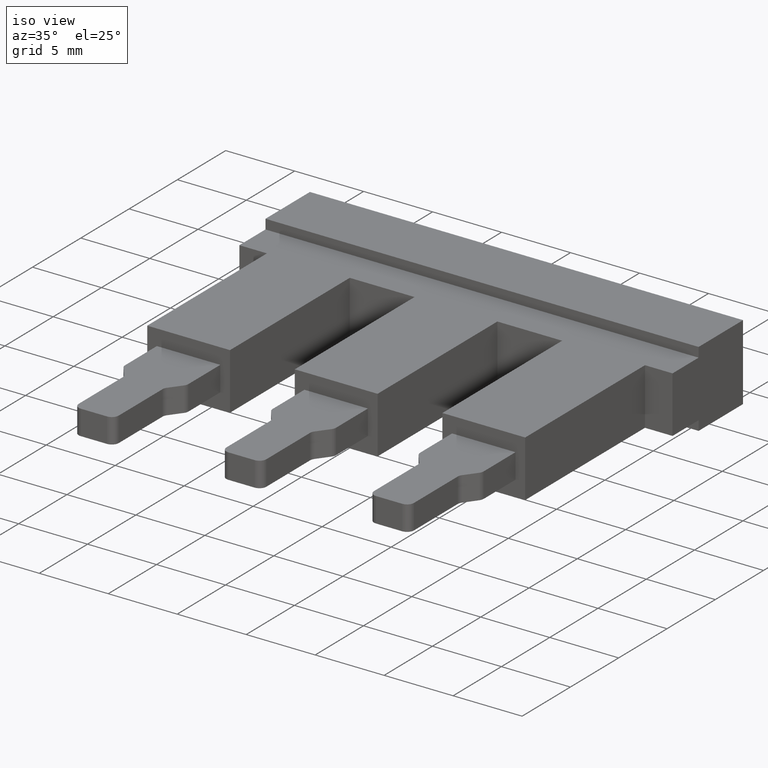
[diagram: clean part render]
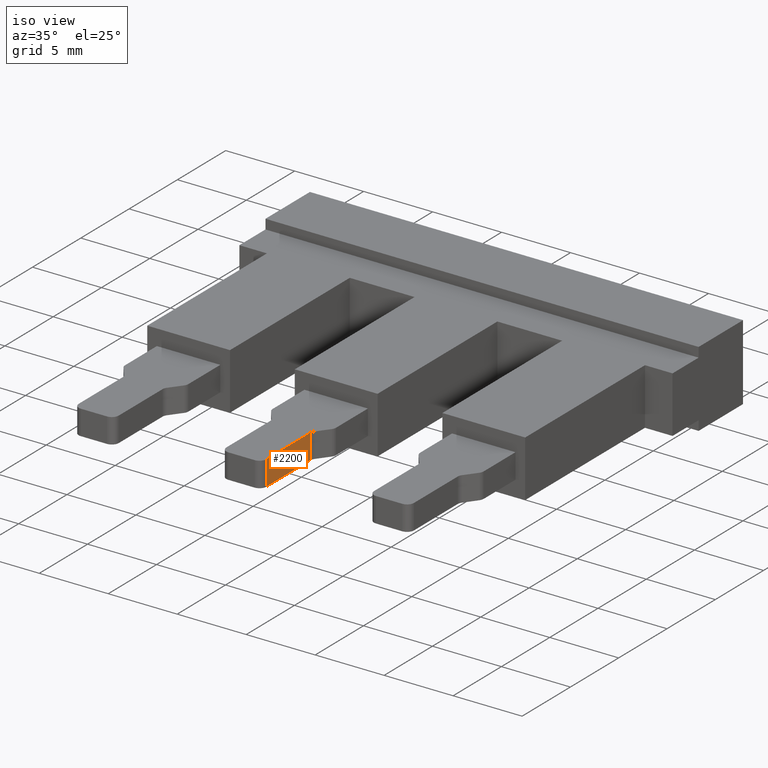
[diagram: same view with one face highlighted and labeled with its STEP entity id]
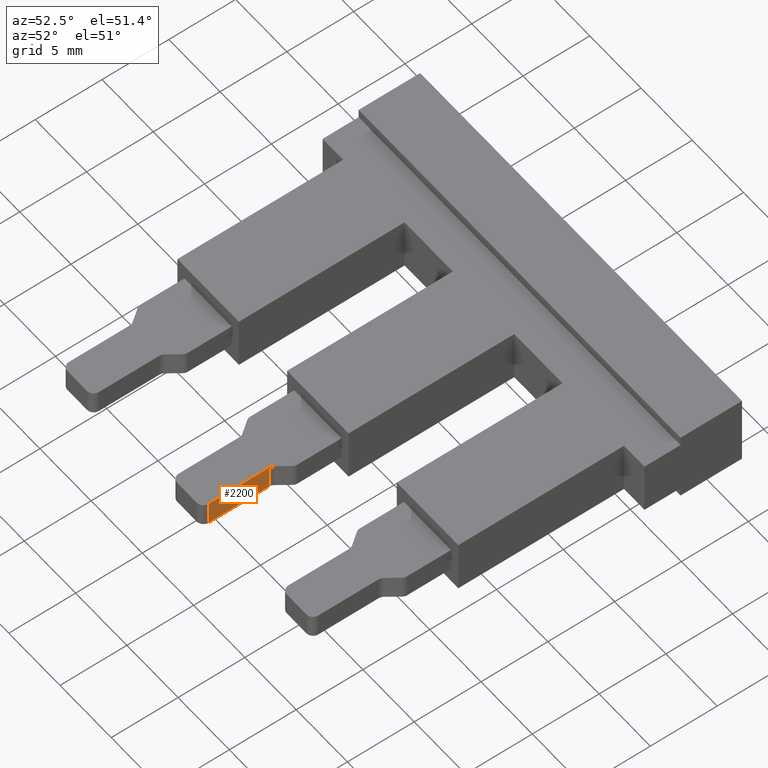
[diagram: same view with one face highlighted and labeled with its STEP entity id]
A machine part, iso view. The second image highlights one B-rep face of the part: STEP entity #2200.
A second angle (auxiliary view) of the same face is appended — the face is thin or edge-on in the first view.
In plain terms, the highlighted planar face has unit normal (-1, -0, 0).
Its self-contained STEP definition (entity closure, byte-faithful):
#155 = EDGE_LOOP ( 'NONE', ( #566, #586, #522, #613 ) ) ;
#241 = VERTEX_POINT ( 'NONE', #716 ) ;
#274 = VERTEX_POINT ( 'NONE', #762 ) ;
#283 = VERTEX_POINT ( 'NONE', #755 ) ;
#300 = VERTEX_POINT ( 'NONE', #805 ) ;
#522 = ORIENTED_EDGE ( 'NONE', *, *, #2123, .F. ) ;
#566 = ORIENTED_EDGE ( 'NONE', *, *, #2111, .F. ) ;
#586 = ORIENTED_EDGE ( 'NONE', *, *, #2104, .T. ) ;
#613 = ORIENTED_EDGE ( 'NONE', *, *, #2096, .T. ) ;
#716 = CARTESIAN_POINT ( 'NONE',  ( 17.14999999999966500, -17.16666666666701600, 2.949999999999999300 ) ) ;
#755 = CARTESIAN_POINT ( 'NONE',  ( 17.14999999999983200, -21.69999999999998900, 2.949999999999999300 ) ) ;
#762 = CARTESIAN_POINT ( 'NONE',  ( 17.14999999999999900, -21.69999999999998900, 1.149999999999979700 ) ) ;
#805 = CARTESIAN_POINT ( 'NONE',  ( 17.14999999999983200, -17.16666666666701600, 1.149999999999979700 ) ) ;
#1082 = VECTOR ( 'NONE', #1517, 1000.000000000000000 ) ;
#1091 = VECTOR ( 'NONE', #1500, 1000.000000000000000 ) ;
#1103 = VECTOR ( 'NONE', #1468, 1000.000000000000000 ) ;
#1110 = VECTOR ( 'NONE', #1521, 1000.000000000000000 ) ;
#1196 = AXIS2_PLACEMENT_3D ( 'NONE', #1887, #1870, #1871 ) ;
#1464 = LINE ( 'NONE', #1467, #1103 ) ;
#1467 = CARTESIAN_POINT ( 'NONE',  ( 17.14999999999999900, -2.699999999999992200, 1.149999999999979700 ) ) ;
#1468 = DIRECTION ( 'NONE',  ( 0.0000000000000000000, 1.000000000000000000, -0.0000000000000000000 ) ) ;
#1480 = CARTESIAN_POINT ( 'NONE',  ( 17.14999999999966500, -2.699999999999992200, 2.949999999999999300 ) ) ;
#1497 = LINE ( 'NONE', #1499, #1091 ) ;
#1499 = CARTESIAN_POINT ( 'NONE',  ( 17.14999999999966500, -17.16666666666703700, 1.449999999999982000 ) ) ;
#1500 = DIRECTION ( 'NONE',  ( 0.0000000000000000000, -0.0000000000000000000, -1.000000000000000000 ) ) ;
#1509 = LINE ( 'NONE', #1480, #1082 ) ;
#1517 = DIRECTION ( 'NONE',  ( -0.0000000000000000000, -1.000000000000000000, -0.0000000000000000000 ) ) ;
#1521 = DIRECTION ( 'NONE',  ( -0.0000000000000000000, 0.0000000000000000000, 1.000000000000000000 ) ) ;
#1541 = LINE ( 'NONE', #1549, #1110 ) ;
#1549 = CARTESIAN_POINT ( 'NONE',  ( 17.14999999999999900, -21.69999999999998900, 1.449999999999982000 ) ) ;
#1869 = PLANE ( 'NONE',  #1196 ) ;
#1870 = DIRECTION ( 'NONE',  ( -1.000000000000000000, -7.347064133549189600E-014, 0.0000000000000000000 ) ) ;
#1871 = DIRECTION ( 'NONE',  ( 7.347064133549189600E-014, -1.000000000000000000, 0.0000000000000000000 ) ) ;
#1887 = CARTESIAN_POINT ( 'NONE',  ( 17.14999999999999900, -21.69999999999998900, 1.449999999999982000 ) ) ;
#1898 = FACE_OUTER_BOUND ( 'NONE', #155, .T. ) ;
#2096 = EDGE_CURVE ( 'NONE', #274, #300, #1464, .T. ) ;
#2104 = EDGE_CURVE ( 'NONE', #241, #283, #1509, .T. ) ;
#2111 = EDGE_CURVE ( 'NONE', #241, #300, #1497, .T. ) ;
#2123 = EDGE_CURVE ( 'NONE', #274, #283, #1541, .T. ) ;
#2200 = ADVANCED_FACE ( 'NONE', ( #1898 ), #1869, .F. ) ;